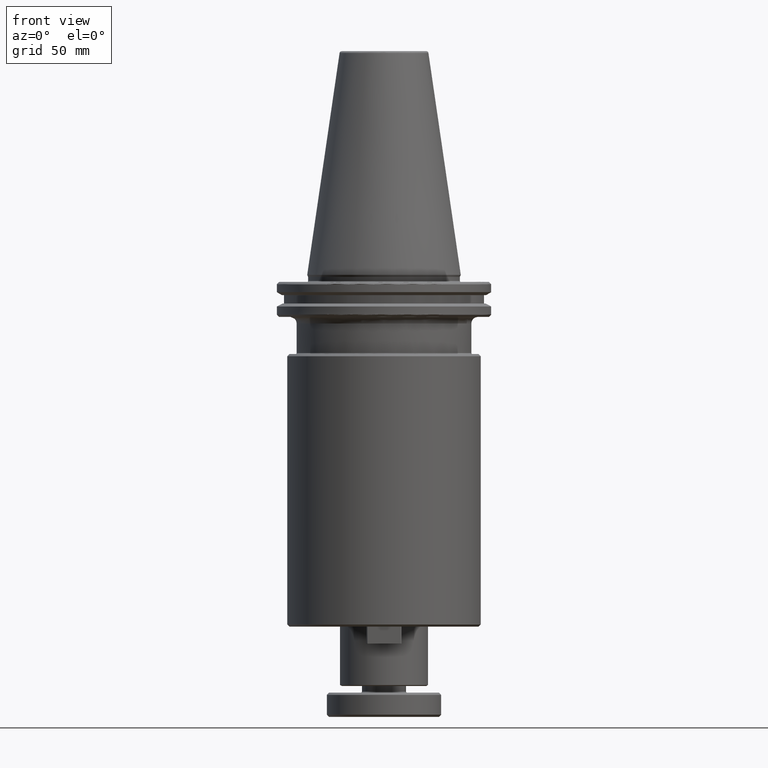
[diagram: clean part render]
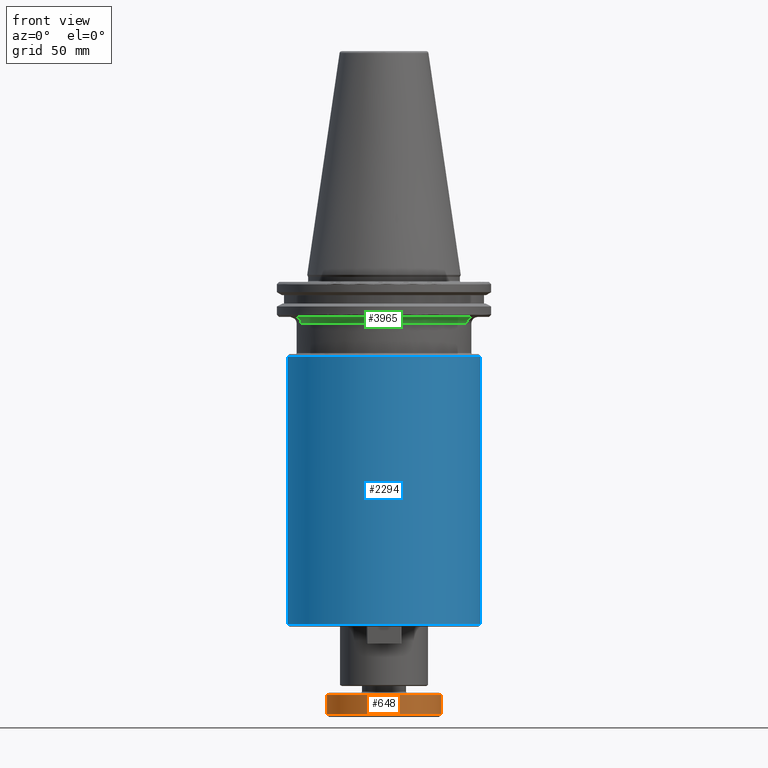
[diagram: same view with three faces highlighted in distinct colors, each labeled with its STEP entity id]
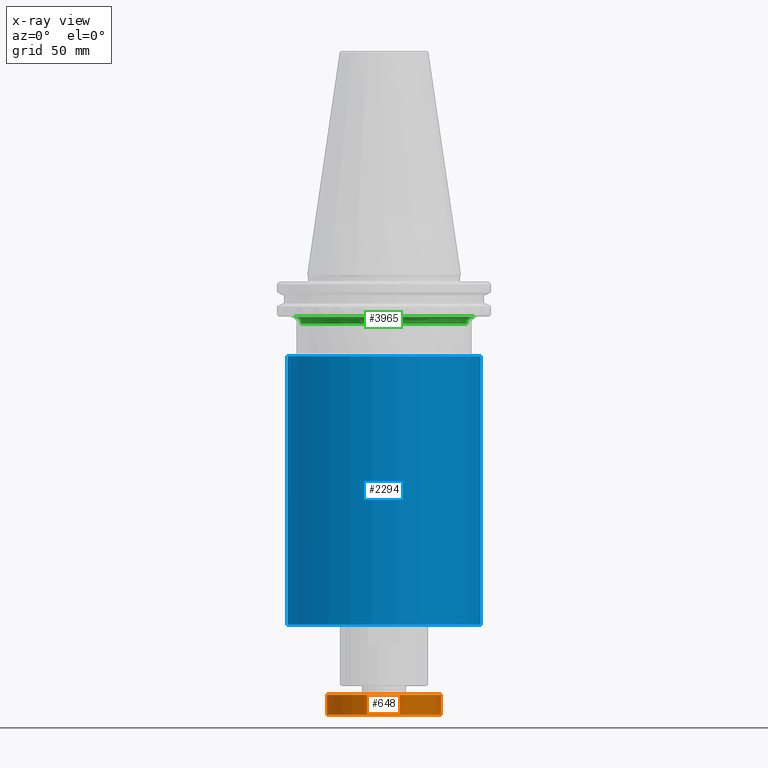
[diagram: x-ray of the same camera — body ghosted, the three highlighted faces saturated]
A machine part, front view with three faces highlighted in distinct colors.
The next image is the same camera in x-ray (body ghosted, the three faces saturated) — at least one of them is partly hidden behind the body in this view.
Their STEP definitions:

[orange] entity #648 — the highlighted cylindrical surface (partial cylindrical patch) has radius 26 mm, axis along (0, 0, 1).
#12 = VECTOR ( 'NONE', #2084, 1000.000000000000000 ) ;
#41 = VERTEX_POINT ( 'NONE', #1825 ) ;
#87 = DIRECTION ( 'NONE',  ( -1.000000000000000000, 0.0000000000000000000, 0.0000000000000000000 ) ) ;
#93 = DIRECTION ( 'NONE',  ( -0.0000000000000000000, -0.0000000000000000000, 1.000000000000000000 ) ) ;
#100 = CARTESIAN_POINT ( 'NONE',  ( 0.0000000000000000000, 0.0000000000000000000, -191.0000000000000000 ) ) ;
#114 = DIRECTION ( 'NONE',  ( 1.000000000000000000, 0.0000000000000000000, 0.0000000000000000000 ) ) ;
#134 = CIRCLE ( 'NONE', #157, 26.00000000000000700 ) ;
#154 = LINE ( 'NONE', #1938, #238 ) ;
#157 = AXIS2_PLACEMENT_3D ( 'NONE', #1888, #1886, #1880 ) ;
#238 = VECTOR ( 'NONE', #1919, 1000.000000000000000 ) ;
#296 = VERTEX_POINT ( 'NONE', #2029 ) ;
#419 = ORIENTED_EDGE ( 'NONE', *, *, #2853, .F. ) ;
#648 = ADVANCED_FACE ( 'NONE', ( #1537 ), #2366, .T. ) ;
#737 = AXIS2_PLACEMENT_3D ( 'NONE', #2408, #3235, #114 ) ;
#1009 = ORIENTED_EDGE ( 'NONE', *, *, #2210, .F. ) ;
#1428 = CIRCLE ( 'NONE', #4231, 26.00000000000000700 ) ;
#1537 = FACE_OUTER_BOUND ( 'NONE', #1961, .T. ) ;
#1599 = LINE ( 'NONE', #2088, #12 ) ;
#1825 = CARTESIAN_POINT ( 'NONE',  ( 26.00000000000000700, 0.0000000000000000000, -191.0000000000000000 ) ) ;
#1880 = DIRECTION ( 'NONE',  ( 1.000000000000000000, 0.0000000000000000000, 0.0000000000000000000 ) ) ;
#1886 = DIRECTION ( 'NONE',  ( 0.0000000000000000000, 0.0000000000000000000, 1.000000000000000000 ) ) ;
#1888 = CARTESIAN_POINT ( 'NONE',  ( 0.0000000000000000000, 0.0000000000000000000, -200.0000000000000000 ) ) ;
#1919 = DIRECTION ( 'NONE',  ( 0.0000000000000000000, 0.0000000000000000000, 1.000000000000000000 ) ) ;
#1938 = CARTESIAN_POINT ( 'NONE',  ( 26.00000000000000700, 0.0000000000000000000, 0.0000000000000000000 ) ) ;
#1961 = EDGE_LOOP ( 'NONE', ( #1009, #2760, #2571, #419 ) ) ;
#2029 = CARTESIAN_POINT ( 'NONE',  ( 26.00000000000000400, 0.0000000000000000000, -200.0000000000000000 ) ) ;
#2084 = DIRECTION ( 'NONE',  ( 0.0000000000000000000, 0.0000000000000000000, 1.000000000000000000 ) ) ;
#2088 = CARTESIAN_POINT ( 'NONE',  ( -26.00000000000000700, 3.184081677783119000E-015, 0.0000000000000000000 ) ) ;
#2210 = EDGE_CURVE ( 'NONE', #3314, #4850, #1599, .T. ) ;
#2261 = EDGE_CURVE ( 'NONE', #296, #41, #154, .T. ) ;
#2272 = EDGE_CURVE ( 'NONE', #3314, #296, #134, .T. ) ;
#2366 = CYLINDRICAL_SURFACE ( 'NONE', #737, 26.00000000000000700 ) ;
#2408 = CARTESIAN_POINT ( 'NONE',  ( 0.0000000000000000000, 0.0000000000000000000, 0.0000000000000000000 ) ) ;
#2571 = ORIENTED_EDGE ( 'NONE', *, *, #2261, .T. ) ;
#2746 = CARTESIAN_POINT ( 'NONE',  ( -26.00000000000000400, 3.184081677783118600E-015, -200.0000000000000000 ) ) ;
#2760 = ORIENTED_EDGE ( 'NONE', *, *, #2272, .T. ) ;
#2853 = EDGE_CURVE ( 'NONE', #4850, #41, #1428, .T. ) ;
#2884 = CARTESIAN_POINT ( 'NONE',  ( -26.00000000000000700, 3.184081677783119000E-015, -191.0000000000000000 ) ) ;
#3235 = DIRECTION ( 'NONE',  ( 0.0000000000000000000, 0.0000000000000000000, 1.000000000000000000 ) ) ;
#3314 = VERTEX_POINT ( 'NONE', #2746 ) ;
#4231 = AXIS2_PLACEMENT_3D ( 'NONE', #100, #93, #87 ) ;
#4850 = VERTEX_POINT ( 'NONE', #2884 ) ;

[blue] entity #2294 — the highlighted cylindrical surface (partial cylindrical patch) has radius 44 mm, axis along (0, 0, 1).
#64 = EDGE_CURVE ( 'NONE', #1549, #2789, #1367, .T. ) ;
#226 = FACE_OUTER_BOUND ( 'NONE', #512, .T. ) ;
#429 = AXIS2_PLACEMENT_3D ( 'NONE', #1902, #1896, #1908 ) ;
#459 = CYLINDRICAL_SURFACE ( 'NONE', #429, 44.00000000000000000 ) ;
#512 = EDGE_LOOP ( 'NONE', ( #1131, #900, #4272, #3080 ) ) ;
#567 = CARTESIAN_POINT ( 'NONE',  ( -44.00000000000000000, 5.388445916248353600E-015, -159.0000000000000000 ) ) ;
#847 = CARTESIAN_POINT ( 'NONE',  ( 44.00000000000000000, 5.388445916248353600E-015, -37.00000000000000700 ) ) ;
#900 = ORIENTED_EDGE ( 'NONE', *, *, #3750, .T. ) ;
#1055 = CIRCLE ( 'NONE', #4306, 44.00000000000000000 ) ;
#1114 = DIRECTION ( 'NONE',  ( 1.000000000000000000, 0.0000000000000000000, 0.0000000000000000000 ) ) ;
#1123 = DIRECTION ( 'NONE',  ( -0.0000000000000000000, -0.0000000000000000000, -1.000000000000000000 ) ) ;
#1130 = CARTESIAN_POINT ( 'NONE',  ( 0.0000000000000000000, 0.0000000000000000000, -37.00000000000000700 ) ) ;
#1131 = ORIENTED_EDGE ( 'NONE', *, *, #1520, .F. ) ;
#1367 = LINE ( 'NONE', #3297, #4122 ) ;
#1520 = EDGE_CURVE ( 'NONE', #4858, #2309, #4464, .T. ) ;
#1549 = VERTEX_POINT ( 'NONE', #3859 ) ;
#1893 = VECTOR ( 'NONE', #3868, 1000.000000000000000 ) ;
#1896 = DIRECTION ( 'NONE',  ( 0.0000000000000000000, 0.0000000000000000000, 1.000000000000000000 ) ) ;
#1902 = CARTESIAN_POINT ( 'NONE',  ( 0.0000000000000000000, 0.0000000000000000000, 0.0000000000000000000 ) ) ;
#1908 = DIRECTION ( 'NONE',  ( 1.000000000000000000, 0.0000000000000000000, 0.0000000000000000000 ) ) ;
#1928 = CARTESIAN_POINT ( 'NONE',  ( -44.00000000000000000, 0.0000000000000000000, -37.00000000000000700 ) ) ;
#2294 = ADVANCED_FACE ( 'NONE', ( #226 ), #459, .T. ) ;
#2309 = VERTEX_POINT ( 'NONE', #1928 ) ;
#2422 = DIRECTION ( 'NONE',  ( 0.0000000000000000000, 0.0000000000000000000, 1.000000000000000000 ) ) ;
#2652 = EDGE_CURVE ( 'NONE', #2789, #2309, #1055, .T. ) ;
#2789 = VERTEX_POINT ( 'NONE', #847 ) ;
#2932 = CIRCLE ( 'NONE', #3964, 44.00000000000000000 ) ;
#2950 = DIRECTION ( 'NONE',  ( 1.000000000000000000, 0.0000000000000000000, 0.0000000000000000000 ) ) ;
#2970 = DIRECTION ( 'NONE',  ( 0.0000000000000000000, 0.0000000000000000000, 1.000000000000000000 ) ) ;
#3026 = CARTESIAN_POINT ( 'NONE',  ( 0.0000000000000000000, 0.0000000000000000000, -159.0000000000000000 ) ) ;
#3080 = ORIENTED_EDGE ( 'NONE', *, *, #2652, .T. ) ;
#3297 = CARTESIAN_POINT ( 'NONE',  ( 44.00000000000000000, 0.0000000000000000000, 0.0000000000000000000 ) ) ;
#3750 = EDGE_CURVE ( 'NONE', #4858, #1549, #2932, .T. ) ;
#3859 = CARTESIAN_POINT ( 'NONE',  ( 44.00000000000000000, 0.0000000000000000000, -159.0000000000000000 ) ) ;
#3868 = DIRECTION ( 'NONE',  ( 0.0000000000000000000, 0.0000000000000000000, 1.000000000000000000 ) ) ;
#3873 = CARTESIAN_POINT ( 'NONE',  ( -44.00000000000000000, 5.388445916248353600E-015, 0.0000000000000000000 ) ) ;
#3964 = AXIS2_PLACEMENT_3D ( 'NONE', #3026, #2970, #2950 ) ;
#4122 = VECTOR ( 'NONE', #2422, 1000.000000000000000 ) ;
#4272 = ORIENTED_EDGE ( 'NONE', *, *, #64, .T. ) ;
#4306 = AXIS2_PLACEMENT_3D ( 'NONE', #1130, #1123, #1114 ) ;
#4464 = LINE ( 'NONE', #3873, #1893 ) ;
#4858 = VERTEX_POINT ( 'NONE', #567 ) ;

[green] entity #3965 — the highlighted face is a freeform B-spline surface patch.
#129 = CARTESIAN_POINT ( 'NONE',  ( -24.22746896333742200, -57.80115273165780100, -20.34264068711928200 ) ) ;
#159 = VERTEX_POINT ( 'NONE', #3968 ) ;
#166 = CARTESIAN_POINT ( 'NONE',  ( 37.71634185501623900, -12.85000000000000000, -21.35000000000000100 ) ) ;
#168 = CARTESIAN_POINT ( 'NONE',  ( 37.76148888618156700, -12.85000000000000300, -21.18448868183137500 ) ) ;
#170 = CARTESIAN_POINT ( 'NONE',  ( 37.82081223678161300, -12.84999999999999800, -21.02498429440451800 ) ) ;
#178 = CARTESIAN_POINT ( 'NONE',  ( 37.96659942559365700, -12.85000000000000000, -20.71747575627535600 ) ) ;
#183 = CARTESIAN_POINT ( 'NONE',  ( 38.05395178366303800, -12.84999999999999300, -20.56853053985353000 ) ) ;
#191 = CARTESIAN_POINT ( 'NONE',  ( 38.24975617692623300, -12.85000000000000100, -20.29159424486844900 ) ) ;
#193 = CARTESIAN_POINT ( 'NONE',  ( 38.35850395686338700, -12.85000000000000700, -20.16251166042925300 ) ) ;
#200 = CARTESIAN_POINT ( 'NONE',  ( 38.59697202500826300, -12.85000000000000700, -19.92249570429620000 ) ) ;
#209 = CARTESIAN_POINT ( 'NONE',  ( 38.72809293724580500, -12.85000000000001900, -19.81066840566416000 ) ) ;
#217 = CARTESIAN_POINT ( 'NONE',  ( 39.00385802471097200, -12.85000000000002500, -19.61175000809332000 ) ) ;
#218 = CARTESIAN_POINT ( 'NONE',  ( 39.14840897975491200, -12.85000000000000700, -19.52428461667051400 ) ) ;
#229 = CARTESIAN_POINT ( 'NONE',  ( 39.45033972291199800, -12.85000000000001000, -19.37242777832733500 ) ) ;
#230 = CARTESIAN_POINT ( 'NONE',  ( -37.77224916958941500, -12.38223294363549300, -22.10000000000000900 ) ) ;
#231 = CARTESIAN_POINT ( 'NONE',  ( 39.60885062538084600, -12.85000000000000100, -19.30769735225749900 ) ) ;
#237 = CARTESIAN_POINT ( 'NONE',  ( 40.09649680881292300, -12.85000000000000100, -19.15201653113462800 ) ) ;
#244 = CARTESIAN_POINT ( 'NONE',  ( 40.77303030190422800, -12.84999999999999600, -19.10000000000000500 ) ) ;
#245 = CARTESIAN_POINT ( 'NONE',  ( 40.43035991629898300, -12.84999999999999100, -19.09999999999999800 ) ) ;
#325 = CARTESIAN_POINT ( 'NONE',  ( -37.81482083441437700, -12.49268935653552900, -21.33331781445370700 ) ) ;
#388 = VERTEX_POINT ( 'NONE', #230 ) ;
#449 = EDGE_CURVE ( 'NONE', #2217, #388, #2407, .T. ) ;
#518 = VERTEX_POINT ( 'NONE', #1226 ) ;
#533 = CARTESIAN_POINT ( 'NONE',  ( 38.08883139715842200, -11.37116629017619800, -22.10000000000000900 ) ) ;
#563 = CARTESIAN_POINT ( 'NONE',  ( -38.36042984675327700, -12.85000000000002500, -20.15796619343577900 ) ) ;
#732 = EDGE_CURVE ( 'NONE', #4170, #3079, #4762, .T. ) ;
#890 = CARTESIAN_POINT ( 'NONE',  ( 37.62316440705114200, -12.82809416865966100, -22.10000000000000900 ) ) ;
#908 = CARTESIAN_POINT ( 'NONE',  ( 40.96346018184962600, -12.22936751962346100, -19.10000000000000500 ) ) ;
#919 = CARTESIAN_POINT ( 'NONE',  ( -24.22746896333741900, -57.80115273165781500, -22.10000000000000100 ) ) ;
#1015 = B_SPLINE_CURVE_WITH_KNOTS ( 'NONE', 3,
 ( #4855, #4857, #4838, #4829, #4824, #4821, #4820, #4817, #4816, #4809, #4808, #4804, #4802, #4792, #4791, #4786, #4783, #4778, #4769, #4768, #4763, #4760, #4755, #4753, #4750, #4740, #4738, #4734, #4728, #4723, #4721, #4712, #4707, #4701, #4698, #4697, #4693, #4688, #4686, #4684, #4679, #4675, #4673, #4671, #4663, #4654, #4652, #4649, #4641, #4637, #4631, #4615, #4614, #4611, #4609, #4603, #4596, #4593, #4592, #4586, #4585, #4583, #4582, #4578, #4573, #4566, #4564, #4557, #4551, #4549, #4545, #4543, #4539, #4535, #4531, #4529, #4525, #4524, #4521, #4515, #4506, #4498, #4491, #4486, #4484, #4482, #4479, #4472, #4469, #4465, #4461, #4458, #4456, #4451, #4434, #4432, #4427, #4424, #4423, #4420, #4418, #4416, #4411, #4409, #4406, #4402 ),
 .UNSPECIFIED., .F., .F.,
 ( 4, 1, 1, 1, 1, 1, 2, 2, 1, 1, 1, 1, 2, 2, 1, 1, 1, 2, 2, 2, 1, 1, 1, 2, 2, 1, 1, 1, 1, 2, 2, 1, 1, 1, 1, 1, 2, 2, 2, 1, 1, 1, 1, 1, 2, 2, 1, 1, 1, 1, 2, 2, 1, 1, 1, 2, 2, 2, 1, 1, 1, 2, 2, 1, 1, 1, 1, 2, 2, 1, 1, 1, 1, 1, 2, 2, 4 ),
 ( 0.0000000000000000000, 0.03124999999999741900, 0.04687499999999601700, 0.05468749999999531600, 0.05859374999999492800, 0.06054687499999476800, 0.06152343749999474000, 0.06249999999999470600, 0.09374999999999564200, 0.1093749999999960200, 0.1171874999999962000, 0.1210937499999962400, 0.1230468749999963100, 0.1249999999999963600, 0.1562499999999977000, 0.1718749999999984200, 0.1796874999999988300, 0.1835937499999990300, 0.1874999999999992000, 0.2500000000000015500, 0.2812500000000027200, 0.2968750000000033300, 0.3046875000000037200, 0.3085937500000038300, 0.3125000000000039400, 0.3437500000000047200, 0.3593750000000051100, 0.3671875000000053800, 0.3710937500000055000, 0.3730468750000055000, 0.3750000000000055000, 0.4062500000000054400, 0.4218750000000054400, 0.4296875000000055000, 0.4335937500000054400, 0.4355468750000054400, 0.4365234375000053800, 0.4375000000000053800, 0.5000000000000041100, 0.5312500000000034400, 0.5468750000000031100, 0.5546875000000028900, 0.5585937500000027800, 0.5605468750000027800, 0.5615234375000027800, 0.5625000000000027800, 0.5937500000000026600, 0.6093750000000025500, 0.6171875000000024400, 0.6210937500000024400, 0.6230468750000023300, 0.6250000000000023300, 0.6562500000000014400, 0.6718750000000010000, 0.6796875000000007800, 0.6835937500000006700, 0.6875000000000005600, 0.7499999999999984500, 0.7812499999999974500, 0.7968749999999968900, 0.8046874999999966700, 0.8085937499999965600, 0.8124999999999964500, 0.8437499999999963400, 0.8593749999999962300, 0.8671874999999961100, 0.8710937499999960000, 0.8730468749999960000, 0.8749999999999961100, 0.9062499999999971100, 0.9218749999999975600, 0.9296874999999977800, 0.9335937499999978900, 0.9355468749999981100, 0.9365234374999981100, 0.9374999999999981100, 1.000000000000000000 ),
 .UNSPECIFIED. ) ;
#1226 = CARTESIAN_POINT ( 'NONE',  ( 40.77303030190422800, -12.84999999999999600, -19.10000000000000500 ) ) ;
#1275 = EDGE_CURVE ( 'NONE', #159, #518, #1015, .T. ) ;
#1287 = CARTESIAN_POINT ( 'NONE',  ( -40.96346018184962600, -12.22936751962345500, -19.10000000000000100 ) ) ;
#1341 = EDGE_CURVE ( 'NONE', #2217, #159, #2665, .T. ) ;
#1574 = CARTESIAN_POINT ( 'NONE',  ( -37.98145909875702100, -12.66439109903521900, -20.80513565570443300 ) ) ;
#1576 = CARTESIAN_POINT ( 'NONE',  ( 37.64930948586193400, -12.85000000000000700, -21.59574408310642100 ) ) ;
#1665 = CARTESIAN_POINT ( 'NONE',  ( 24.98485358421195100, -59.60809774163904300, -19.10000000000000500 ) ) ;
#1967 = CARTESIAN_POINT ( 'NONE',  ( 37.71634185501623900, -12.85000000000000000, -21.35000000000000100 ) ) ;
#1976 = AXIS2_PLACEMENT_3D ( 'NONE', #2159, #4781, #2534 ) ;
#2054 = CARTESIAN_POINT ( 'NONE',  ( -39.27954162656561700, -11.72664487865851700, -19.10000000000000100 ) ) ;
#2057 = CARTESIAN_POINT ( 'NONE',  ( -38.49999999999996400, -12.85000000000005300, -20.02032442334372300 ) ) ;
#2159 = CARTESIAN_POINT ( 'NONE',  ( 0.0000000000000000000, 0.0000000000000000000, -22.10000000000000500 ) ) ;
#2217 = VERTEX_POINT ( 'NONE', #2057 ) ;
#2236 = CARTESIAN_POINT ( 'NONE',  ( -38.24415324379324900, -12.81535514250004600, -20.31072910055882400 ) ) ;
#2407 = B_SPLINE_CURVE_WITH_KNOTS ( 'NONE', 3,
 ( #3669, #563, #2236, #4863, #1574, #325, #3042, #4495 ),
 .UNSPECIFIED., .F., .F.,
 ( 4, 2, 2, 4 ),
 ( 9.965227682168975300E-018, 0.0005792426361451171600, 0.001158485272290224300, 0.002316970544580443900 ),
 .UNSPECIFIED. ) ;
#2435 = CARTESIAN_POINT ( 'NONE',  ( 24.22746896333742200, -57.80115273165780100, -20.34264068711928900 ) ) ;
#2534 = DIRECTION ( 'NONE',  ( 1.000000000000000000, 0.0000000000000000000, 0.0000000000000000000 ) ) ;
#2665 = B_SPLINE_CURVE_WITH_KNOTS ( 'NONE', 3,
 ( #4201, #4197, #4190, #4189, #4187, #4182, #4177, #4175, #4169, #4164 ),
 .UNSPECIFIED., .F., .F.,
 ( 4, 2, 2, 2, 4 ),
 ( 0.0000000000000000000, 0.0006248710482148977200, 0.001249742096429795400, 0.001874613144644693200, 0.002499484192859590900 ),
 .UNSPECIFIED. ) ;
#2817 = CARTESIAN_POINT ( 'NONE',  ( 26.05595718698552700, -62.16350388121690400, -19.10000000000000500 ) ) ;
#2825 = EDGE_CURVE ( 'NONE', #518, #4170, #3616, .T. ) ;
#2831 = CARTESIAN_POINT ( 'NONE',  ( -38.08883139715843000, -11.37116629017619800, -20.34264068711928200 ) ) ;
#3042 = CARTESIAN_POINT ( 'NONE',  ( -37.77224916958940100, -12.38223294363549700, -21.70909802421381600 ) ) ;
#3079 = VERTEX_POINT ( 'NONE', #890 ) ;
#3212 = ORIENTED_EDGE ( 'NONE', *, *, #732, .F. ) ;
#3253 = CARTESIAN_POINT ( 'NONE',  ( 24.22746896333741900, -57.80115273165781500, -22.10000000000000500 ) ) ;
#3408 = CARTESIAN_POINT ( 'NONE',  ( 37.61809570509073800, -12.84296002516797900, -21.84573252375143000 ) ) ;
#3461 = FACE_OUTER_BOUND ( 'NONE', #3889, .T. ) ;
#3616 = B_SPLINE_CURVE_WITH_KNOTS ( 'NONE', 3,
 ( #244, #245, #237, #231, #229, #218, #217, #209, #200, #193, #191, #183, #178, #170, #168, #166 ),
 .UNSPECIFIED., .F., .F.,
 ( 4, 2, 2, 2, 2, 2, 2, 4 ),
 ( 6.938893903907228400E-018, 0.001013584983424805200, 0.001520377475137215700, 0.002027169966849626100, 0.002533962458562036300, 0.003040754950274446900, 0.003547547441986857600, 0.004054339933699267800 ),
 .UNSPECIFIED. ) ;
#3628 = CARTESIAN_POINT ( 'NONE',  ( -38.08883139715842200, -11.37116629017619800, -22.10000000000000500 ) ) ;
#3669 = CARTESIAN_POINT ( 'NONE',  ( -38.49999999999996400, -12.85000000000005300, -20.02032442334372300 ) ) ;
#3675 = ORIENTED_EDGE ( 'NONE', *, *, #1341, .F. ) ;
#3850 = CIRCLE ( 'NONE', #1976, 39.75000000000000000 ) ;
#3889 = EDGE_LOOP ( 'NONE', ( #3933, #3675, #4708, #4664, #3212, #4571 ) ) ;
#3933 = ORIENTED_EDGE ( 'NONE', *, *, #1275, .F. ) ;
#3961 =( BOUNDED_SURFACE ( )  B_SPLINE_SURFACE ( 3, 3, ( 
 ( #908, #2817, #4303, #1287 ),
 ( #3967, #1665, #4319, #2054 ),
 ( #4685, #2435, #129, #2831 ),
 ( #533, #3253, #919, #3628 ) ),
 .UNSPECIFIED., .F., .F., .T. ) 
 B_SPLINE_SURFACE_WITH_KNOTS ( ( 4, 4 ),
 ( 4, 4 ),
 ( 0.0000000000000000000, 1.000000000000000000 ),
 ( 0.0000000000000000000, 1.000000000000000000 ),
 .UNSPECIFIED. ) 
 GEOMETRIC_REPRESENTATION_ITEM ( )  RATIONAL_B_SPLINE_SURFACE ( (
 ( 1.000000000000000000, 0.5240447176549466500, 0.5240447176549466500, 1.000000000000000000),
 ( 0.8047378541243641600, 0.4217186215508500500, 0.4217186215508500500, 0.8047378541243641600),
 ( 0.8047378541243641600, 0.4217186215508500500, 0.4217186215508500500, 0.8047378541243641600),
 ( 1.000000000000000000, 0.5240447176549466500, 0.5240447176549466500, 1.000000000000000000) ) ) 
 REPRESENTATION_ITEM ( '' )  SURFACE ( )  );
#3965 = ADVANCED_FACE ( 'NONE', ( #3461 ), #3961, .F. ) ;
#3967 = CARTESIAN_POINT ( 'NONE',  ( 39.27954162656561700, -11.72664487865851900, -19.10000000000000100 ) ) ;
#3968 = CARTESIAN_POINT ( 'NONE',  ( -40.77303030190422800, -12.84999999999999600, -19.10000000000000500 ) ) ;
#4094 = EDGE_CURVE ( 'NONE', #3079, #388, #3850, .T. ) ;
#4164 = CARTESIAN_POINT ( 'NONE',  ( -40.77303030190422800, -12.84999999999999600, -19.10000000000000500 ) ) ;
#4169 = CARTESIAN_POINT ( 'NONE',  ( -40.56177363759339000, -12.84999999999999100, -19.10000000000000500 ) ) ;
#4170 = VERTEX_POINT ( 'NONE', #4234 ) ;
#4175 = CARTESIAN_POINT ( 'NONE',  ( -40.35030879046514200, -12.85000000000000000, -19.12050539676385700 ) ) ;
#4177 = CARTESIAN_POINT ( 'NONE',  ( -39.93968856233514200, -12.85000000000000100, -19.20013437397484100 ) ) ;
#4182 = CARTESIAN_POINT ( 'NONE',  ( -39.73971981534267400, -12.85000000000000900, -19.25899921026992700 ) ) ;
#4187 = CARTESIAN_POINT ( 'NONE',  ( -39.35068431968176100, -12.85000000000001200, -19.41561159879500700 ) ) ;
#4189 = CARTESIAN_POINT ( 'NONE',  ( -39.16246410557592100, -12.85000000000001900, -19.51359455166909700 ) ) ;
#4190 = CARTESIAN_POINT ( 'NONE',  ( -38.81346001737051000, -12.85000000000002100, -19.74136303470586300 ) ) ;
#4197 = CARTESIAN_POINT ( 'NONE',  ( -38.65051358297223100, -12.85000000000002300, -19.87189042437431000 ) ) ;
#4201 = CARTESIAN_POINT ( 'NONE',  ( -38.49999999999996400, -12.85000000000005300, -20.02032442334372300 ) ) ;
#4234 = CARTESIAN_POINT ( 'NONE',  ( 37.71634185501623900, -12.85000000000000000, -21.35000000000000100 ) ) ;
#4303 = CARTESIAN_POINT ( 'NONE',  ( -26.05595718698553400, -62.16350388121687600, -19.10000000000000100 ) ) ;
#4319 = CARTESIAN_POINT ( 'NONE',  ( -24.98485358421195500, -59.60809774163904300, -19.10000000000000100 ) ) ;
#4402 = CARTESIAN_POINT ( 'NONE',  ( 40.77303030190422800, -12.84999999999999600, -19.10000000000000500 ) ) ;
#4406 = CARTESIAN_POINT ( 'NONE',  ( 40.12402644399459500, -14.90928824627252800, -19.09999999999999800 ) ) ;
#4409 = CARTESIAN_POINT ( 'NONE',  ( 39.32368075819255900, -16.90778616084236300, -19.10000000000000100 ) ) ;
#4411 = CARTESIAN_POINT ( 'NONE',  ( 38.35712312709669200, -18.87577042469163400, -19.10000000000000900 ) ) ;
#4416 = CARTESIAN_POINT ( 'NONE',  ( 38.34105995448915400, -18.90837916328065300, -19.10000000000000500 ) ) ;
#4418 = CARTESIAN_POINT ( 'NONE',  ( 38.31001597225865400, -18.97119868213960100, -19.10000000000000100 ) ) ;
#4420 = CARTESIAN_POINT ( 'NONE',  ( 38.26333930669143500, -19.06536205971563900, -19.10000000000000500 ) ) ;
#4423 = CARTESIAN_POINT ( 'NONE',  ( 38.15365224148413100, -19.28461530240639400, -19.10000000000000500 ) ) ;
#4424 = CARTESIAN_POINT ( 'NONE',  ( 37.93117872886797700, -19.72127656784128300, -19.10000000000000500 ) ) ;
#4427 = CARTESIAN_POINT ( 'NONE',  ( 37.47383417482909400, -20.58721821892454100, -19.10000000000000500 ) ) ;
#4432 = CARTESIAN_POINT ( 'NONE',  ( 36.50955495152528800, -22.28957800194498200, -19.10000000000000500 ) ) ;
#4434 = CARTESIAN_POINT ( 'NONE',  ( 35.59801827687744000, -23.69813178314059200, -19.10000000000000500 ) ) ;
#4451 = CARTESIAN_POINT ( 'NONE',  ( 34.91220208667599700, -24.67195738646449500, -19.10000000000000100 ) ) ;
#4456 = CARTESIAN_POINT ( 'NONE',  ( 34.86956266367144500, -24.73219011740393500, -19.10000000000000500 ) ) ;
#4458 = CARTESIAN_POINT ( 'NONE',  ( 34.78616456580518000, -24.84935866055127500, -19.10000000000000900 ) ) ;
#4461 = CARTESIAN_POINT ( 'NONE',  ( 34.66065087297945300, -25.02476342846110300, -19.10000000000000900 ) ) ;
#4465 = CARTESIAN_POINT ( 'NONE',  ( 34.36486976753514000, -25.43160489257260400, -19.10000000000000900 ) ) ;
#4469 = CARTESIAN_POINT ( 'NONE',  ( 33.76164426790924700, -26.23554251008320600, -19.10000000000000900 ) ) ;
#4472 = CARTESIAN_POINT ( 'NONE',  ( 32.50854011370860500, -27.80443650225458200, -19.10000000000000500 ) ) ;
#4479 = CARTESIAN_POINT ( 'NONE',  ( 31.35447400162429000, -29.08237779351613400, -19.10000000000000900 ) ) ;
#4482 = CARTESIAN_POINT ( 'NONE',  ( 30.44893599903340600, -30.00742126809105800, -19.10000000000000500 ) ) ;
#4484 = CARTESIAN_POINT ( 'NONE',  ( 30.34507680292248500, -30.11245888177833100, -19.10000000000000100 ) ) ;
#4486 = CARTESIAN_POINT ( 'NONE',  ( 30.13914465955375700, -30.31859192305050500, -19.09999999999999800 ) ) ;
#4491 = CARTESIAN_POINT ( 'NONE',  ( 29.82878883086408500, -30.62610430425758800, -19.10000000000000500 ) ) ;
#4495 = CARTESIAN_POINT ( 'NONE',  ( -37.77224916958941500, -12.38223294363549300, -22.10000000000000900 ) ) ;
#4498 = CARTESIAN_POINT ( 'NONE',  ( 29.09442193513192300, -31.33182292883238800, -19.10000000000000900 ) ) ;
#4506 = CARTESIAN_POINT ( 'NONE',  ( 27.58487496184268300, -32.69601911834865900, -19.10000000000000900 ) ) ;
#4515 = CARTESIAN_POINT ( 'NONE',  ( 26.22101210160919700, -33.78434546427677500, -19.10000000000001200 ) ) ;
#4521 = CARTESIAN_POINT ( 'NONE',  ( 23.39999910839957300, -35.85301859125669900, -19.10000000000000100 ) ) ;
#4524 = CARTESIAN_POINT ( 'NONE',  ( 21.41885718054948000, -37.07069513856576000, -19.10000000000000500 ) ) ;
#4525 = CARTESIAN_POINT ( 'NONE',  ( 19.20897794891291000, -38.19160584121503600, -19.10000000000000100 ) ) ;
#4529 = CARTESIAN_POINT ( 'NONE',  ( 19.08207042682001000, -38.25516800829537800, -19.10000000000000100 ) ) ;
#4531 = CARTESIAN_POINT ( 'NONE',  ( 18.82435067859937300, -38.38265537176002300, -19.09999999999999800 ) ) ;
#4535 = CARTESIAN_POINT ( 'NONE',  ( 18.43695172611928300, -38.57187568965606100, -19.10000000000000500 ) ) ;
#4539 = CARTESIAN_POINT ( 'NONE',  ( 17.52728552595517900, -38.99931467364024200, -19.10000000000000900 ) ) ;
#4543 = CARTESIAN_POINT ( 'NONE',  ( 15.68501188145141100, -39.79789227718243400, -19.10000000000000500 ) ) ;
#4545 = CARTESIAN_POINT ( 'NONE',  ( 14.06659233900436800, -40.38587245548797000, -19.10000000000000900 ) ) ;
#4549 = CARTESIAN_POINT ( 'NONE',  ( 12.90164034639082600, -40.75678192963321300, -19.10000000000000500 ) ) ;
#4551 = CARTESIAN_POINT ( 'NONE',  ( 12.83656433370077500, -40.77732182659744400, -19.10000000000000900 ) ) ;
#4557 = CARTESIAN_POINT ( 'NONE',  ( 12.70284536994169700, -40.81917794413808300, -19.10000000000000100 ) ) ;
#4564 = CARTESIAN_POINT ( 'NONE',  ( 12.50215056103484400, -40.88146013666395400, -19.10000000000000500 ) ) ;
#4566 = CARTESIAN_POINT ( 'NONE',  ( 12.03304813070790900, -41.02327136606207600, -19.10000000000000500 ) ) ;
#4571 = ORIENTED_EDGE ( 'NONE', *, *, #2825, .F. ) ;
#4573 = CARTESIAN_POINT ( 'NONE',  ( 11.09158509854351000, -41.29283827887612500, -19.10000000000000500 ) ) ;
#4578 = CARTESIAN_POINT ( 'NONE',  ( 9.195626348172695000, -41.77574992057521500, -19.10000000000000500 ) ) ;
#4582 = CARTESIAN_POINT ( 'NONE',  ( 7.548177100354235900, -42.09329329815326300, -19.10000000000001200 ) ) ;
#4583 = CARTESIAN_POINT ( 'NONE',  ( 6.405315774874599000, -42.26742979715108800, -19.10000000000000500 ) ) ;
#4585 = CARTESIAN_POINT ( 'NONE',  ( 6.373236458107700600, -42.27227753364334000, -19.10000000000000500 ) ) ;
#4586 = CARTESIAN_POINT ( 'NONE',  ( 6.306516208792764600, -42.28228301106862100, -19.10000000000000100 ) ) ;
#4592 = CARTESIAN_POINT ( 'NONE',  ( 6.206427063650498800, -42.29717210453354400, -19.10000000000000500 ) ) ;
#4593 = CARTESIAN_POINT ( 'NONE',  ( 5.972824326796170700, -42.33107946390755700, -19.10000000000000500 ) ) ;
#4596 = CARTESIAN_POINT ( 'NONE',  ( 5.505373260331320600, -42.39555874781223100, -19.10000000000000100 ) ) ;
#4600 = CARTESIAN_POINT ( 'NONE',  ( 37.62316440705114200, -12.82809416865966100, -22.10000000000000900 ) ) ;
#4603 = CARTESIAN_POINT ( 'NONE',  ( 4.569488756376911100, -42.51117557624819200, -19.10000000000000900 ) ) ;
#4609 = CARTESIAN_POINT ( 'NONE',  ( 2.693790264369137600, -42.68904227562657600, -19.10000000000000900 ) ) ;
#4611 = CARTESIAN_POINT ( 'NONE',  ( 1.079312441335737100, -42.75001323367625600, -19.10000000000001200 ) ) ;
#4614 = CARTESIAN_POINT ( 'NONE',  ( -2.158624882671453800, -42.74997353264751600, -19.10000000000000500 ) ) ;
#4615 = CARTESIAN_POINT ( 'NONE',  ( -4.305960393886295800, -42.58735783541558100, -19.10000000000000500 ) ) ;
#4631 = CARTESIAN_POINT ( 'NONE',  ( -6.473291491602237700, -42.25707160695336700, -19.10000000000000500 ) ) ;
#4637 = CARTESIAN_POINT ( 'NONE',  ( -6.509223302208209100, -42.25155255156985100, -19.09999999999999800 ) ) ;
#4641 = CARTESIAN_POINT ( 'NONE',  ( -6.578469087422075900, -42.24082678757228800, -19.10000000000000500 ) ) ;
#4649 = CARTESIAN_POINT ( 'NONE',  ( -6.682308184501293300, -42.22461275955365100, -19.10000000000000500 ) ) ;
#4652 = CARTESIAN_POINT ( 'NONE',  ( -6.924392345828403400, -42.18590235335400300, -19.10000000000000100 ) ) ;
#4654 = CARTESIAN_POINT ( 'NONE',  ( -7.407732407718368600, -42.10497084433016800, -19.10000000000000100 ) ) ;
#4663 = CARTESIAN_POINT ( 'NONE',  ( -8.371099488441254600, -41.92906503978433400, -19.10000000000000900 ) ) ;
#4664 = ORIENTED_EDGE ( 'NONE', *, *, #4094, .F. ) ;
#4671 = CARTESIAN_POINT ( 'NONE',  ( -10.28458147765885900, -41.52108228469979400, -19.10000000000000500 ) ) ;
#4673 = CARTESIAN_POINT ( 'NONE',  ( -11.90199088745424300, -41.07508938721112200, -19.10000000000000900 ) ) ;
#4675 = CARTESIAN_POINT ( 'NONE',  ( -13.03692793711269900, -40.71370587140052800, -19.10000000000000500 ) ) ;
#4679 = CARTESIAN_POINT ( 'NONE',  ( -13.10719197337290100, -40.69114334756636000, -19.10000000000000500 ) ) ;
#4684 = CARTESIAN_POINT ( 'NONE',  ( -13.24401026853632500, -40.64682106938689500, -19.10000000000000500 ) ) ;
#4685 = CARTESIAN_POINT ( 'NONE',  ( 38.08883139715843000, -11.37116629017619800, -20.34264068711928500 ) ) ;
#4686 = CARTESIAN_POINT ( 'NONE',  ( -13.44903096726361200, -40.57983575164358600, -19.10000000000000500 ) ) ;
#4688 = CARTESIAN_POINT ( 'NONE',  ( -13.92596538950226800, -40.42002337359061700, -19.10000000000000900 ) ) ;
#4693 = CARTESIAN_POINT ( 'NONE',  ( -14.87404540147951900, -40.08634540421007100, -19.10000000000000500 ) ) ;
#4697 = CARTESIAN_POINT ( 'NONE',  ( -16.74705009543379900, -39.36277661235084200, -19.10000000000000900 ) ) ;
#4698 = CARTESIAN_POINT ( 'NONE',  ( -18.31278783882281800, -38.64620989973166600, -19.10000000000000100 ) ) ;
#4701 = CARTESIAN_POINT ( 'NONE',  ( -19.46724372065011400, -38.06060241975458100, -19.10000000000001200 ) ) ;
#4707 = CARTESIAN_POINT ( 'NONE',  ( -19.59864237506235100, -37.99311889192936300, -19.10000000000000900 ) ) ;
#4708 = ORIENTED_EDGE ( 'NONE', *, *, #449, .T. ) ;
#4712 = CARTESIAN_POINT ( 'NONE',  ( -19.85714288454049700, -37.85867051903113600, -19.10000000000000500 ) ) ;
#4721 = CARTESIAN_POINT ( 'NONE',  ( -20.24372262806502900, -37.65510061238600100, -19.10000000000000500 ) ) ;
#4723 = CARTESIAN_POINT ( 'NONE',  ( -21.13754488477347200, -37.16682273246294700, -19.10000000000000500 ) ) ;
#4728 = CARTESIAN_POINT ( 'NONE',  ( -22.89240081879527000, -36.13714124827903600, -19.10000000000000500 ) ) ;
#4734 = CARTESIAN_POINT ( 'NONE',  ( -24.34035405470804400, -35.16348444868524600, -19.10000000000001200 ) ) ;
#4738 = CARTESIAN_POINT ( 'NONE',  ( -27.16131520220185200, -33.09474062243979400, -19.10000000000001200 ) ) ;
#4740 = CARTESIAN_POINT ( 'NONE',  ( -28.91818155370820900, -31.57123147113430400, -19.10000000000000500 ) ) ;
#4750 = CARTESIAN_POINT ( 'NONE',  ( -30.65151194383874900, -29.80047660909688600, -19.10000000000000500 ) ) ;
#4753 = CARTESIAN_POINT ( 'NONE',  ( -30.75028115606317100, -29.69854373433494400, -19.10000000000000500 ) ) ;
#4755 = CARTESIAN_POINT ( 'NONE',  ( -30.94933951625017000, -29.49106297450573100, -19.10000000000000900 ) ) ;
#4760 = CARTESIAN_POINT ( 'NONE',  ( -31.24625559330909400, -29.17845600040271800, -19.10000000000000500 ) ) ;
#4762 = B_SPLINE_CURVE_WITH_KNOTS ( 'NONE', 3,
 ( #1967, #1576, #3408, #4600 ),
 .UNSPECIFIED., .F., .F.,
 ( 4, 4 ),
 ( 0.0000000000000000000, 0.0007560832641025812300 ),
 .UNSPECIFIED. ) ;
#4763 = CARTESIAN_POINT ( 'NONE',  ( -31.92735953056225600, -28.43933888698136100, -19.09999999999999800 ) ) ;
#4768 = CARTESIAN_POINT ( 'NONE',  ( -33.24276643486475500, -26.92230129808137900, -19.10000000000000500 ) ) ;
#4769 = CARTESIAN_POINT ( 'NONE',  ( -34.29002783248878900, -25.55546331549743400, -19.10000000000000500 ) ) ;
#4778 = CARTESIAN_POINT ( 'NONE',  ( -34.99395148945028200, -24.55587416569219900, -19.10000000000000900 ) ) ;
#4781 = DIRECTION ( 'NONE',  ( -0.0000000000000000000, -0.0000000000000000000, -1.000000000000000000 ) ) ;
#4783 = CARTESIAN_POINT ( 'NONE',  ( -35.03310238078272200, -24.49998156776369700, -19.10000000000000900 ) ) ;
#4786 = CARTESIAN_POINT ( 'NONE',  ( -35.11321675349054100, -24.38502773732895800, -19.09999999999999800 ) ) ;
#4791 = CARTESIAN_POINT ( 'NONE',  ( -35.23294451998876300, -24.21233512092388200, -19.10000000000000100 ) ) ;
#4792 = CARTESIAN_POINT ( 'NONE',  ( -35.50920276053987100, -23.80755258737441300, -19.10000000000000500 ) ) ;
#4802 = CARTESIAN_POINT ( 'NONE',  ( -36.04929304986325900, -22.99065513919183000, -19.10000000000000500 ) ) ;
#4804 = CARTESIAN_POINT ( 'NONE',  ( -37.07976886139464100, -21.32753071849193200, -19.10000000000000500 ) ) ;
#4808 = CARTESIAN_POINT ( 'NONE',  ( -37.87782567050951600, -19.85171631617539500, -19.10000000000000900 ) ) ;
#4809 = CARTESIAN_POINT ( 'NONE',  ( -38.38743598118532700, -18.81404928831977600, -19.10000000000001200 ) ) ;
#4816 = CARTESIAN_POINT ( 'NONE',  ( -38.40169968781850700, -18.78491552254596200, -19.10000000000001200 ) ) ;
#4817 = CARTESIAN_POINT ( 'NONE',  ( -38.43129521049379300, -18.72429301385500000, -19.10000000000000500 ) ) ;
#4820 = CARTESIAN_POINT ( 'NONE',  ( -38.47557757386171300, -18.63331496329100600, -19.10000000000000500 ) ) ;
#4821 = CARTESIAN_POINT ( 'NONE',  ( -38.57812664387181200, -18.42072283261540000, -19.10000000000000500 ) ) ;
#4824 = CARTESIAN_POINT ( 'NONE',  ( -38.78011900583150900, -17.99429852049237500, -19.10000000000000500 ) ) ;
#4829 = CARTESIAN_POINT ( 'NONE',  ( -39.17168061750911100, -17.13648969315903500, -19.10000000000000500 ) ) ;
#4838 = CARTESIAN_POINT ( 'NONE',  ( -39.90511139189728600, -15.40103122614322700, -19.10000000000000900 ) ) ;
#4855 = CARTESIAN_POINT ( 'NONE',  ( -40.77303030190422800, -12.84999999999999600, -19.10000000000000500 ) ) ;
#4857 = CARTESIAN_POINT ( 'NONE',  ( -40.44857928600070100, -13.87948257610260900, -19.10000000000000100 ) ) ;
#4863 = CARTESIAN_POINT ( 'NONE',  ( -38.05373935720059800, -12.72236708389171200, -20.63633160032626200 ) ) ;